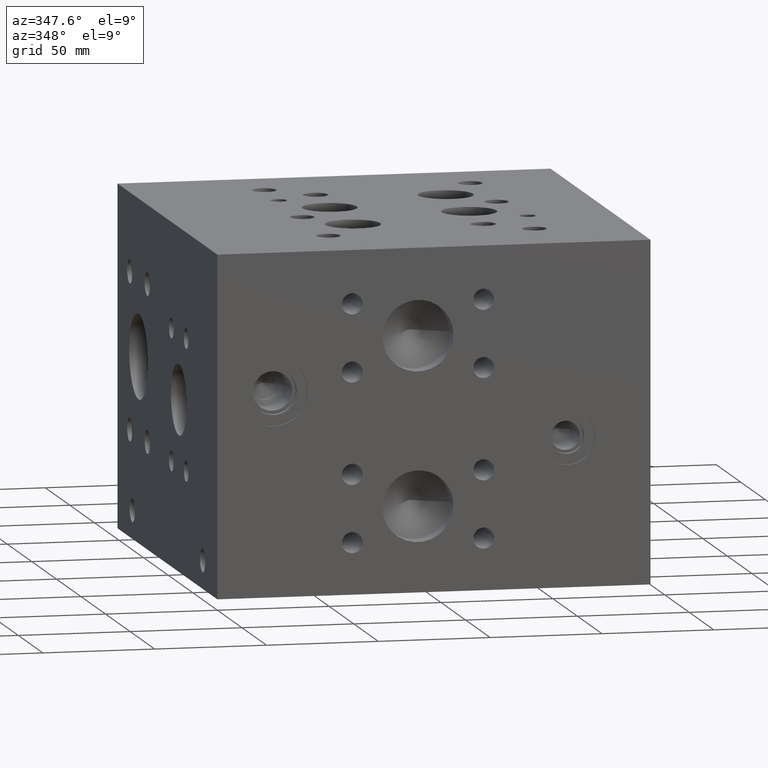
[diagram: clean part render]
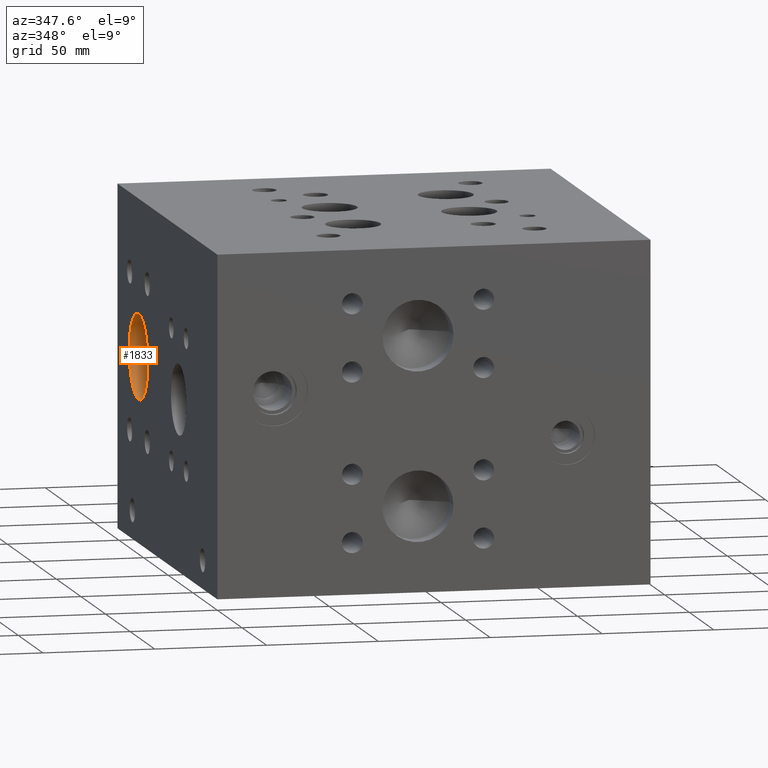
[diagram: same view with one face highlighted and labeled with its STEP entity id]
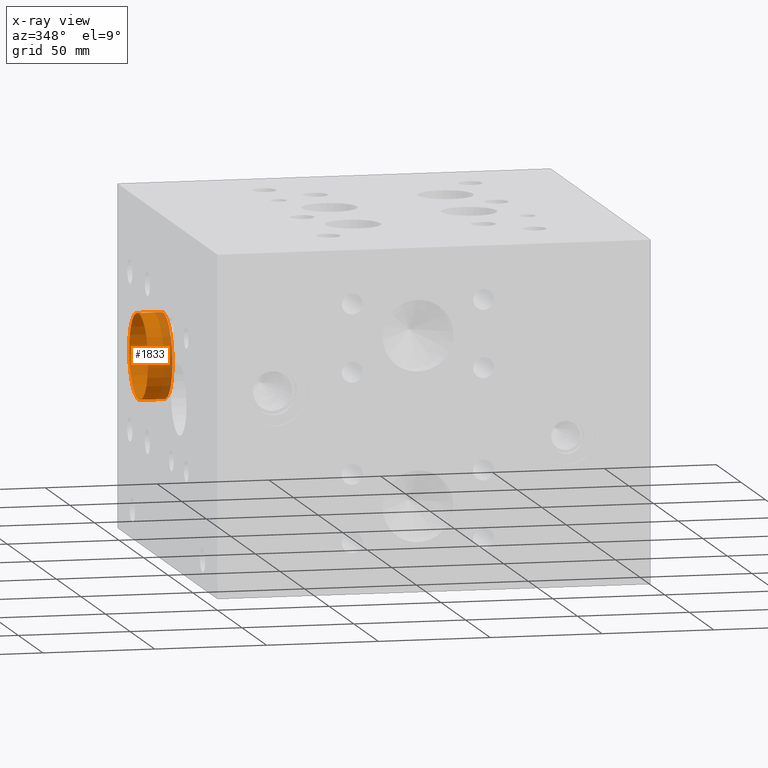
[diagram: x-ray of the same camera — body ghosted, the highlighted face saturated]
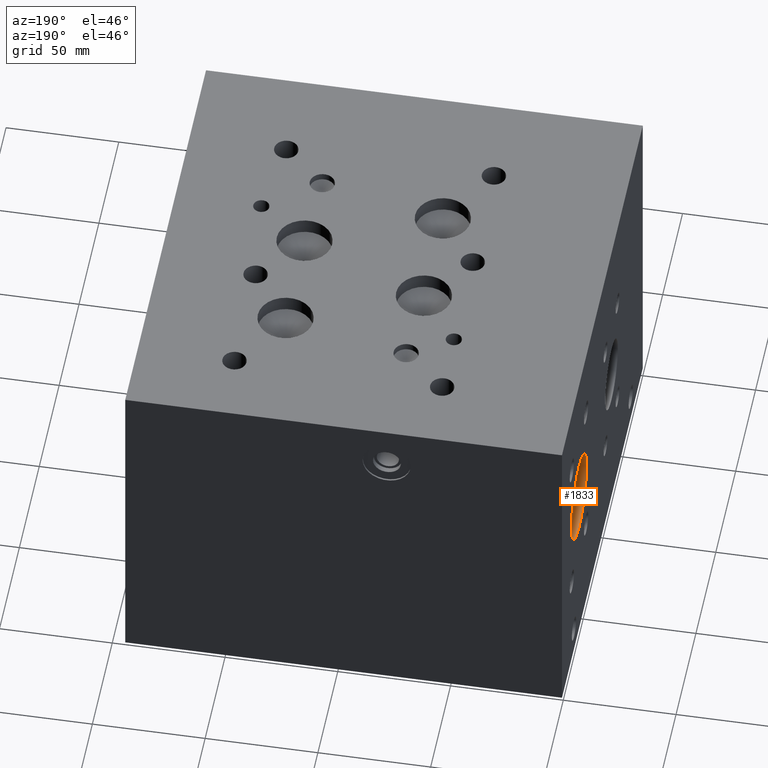
[diagram: same view with one face highlighted and labeled with its STEP entity id]
A machine part, auxiliary view. The second image highlights one B-rep face of the part: STEP entity #1833.
The next image is the same camera in x-ray: the body ghosted, the highlighted face saturated — about 22% of this face is hidden behind the body in this view.
A second angle (auxiliary view) of the same face is appended — the face is thin or edge-on in the first view.
In plain terms, the highlighted cylindrical surface (bore or boss wall) has radius 19.05 mm, axis along (-1, 0, 0).
Its self-contained STEP definition (entity closure, byte-faithful):
#1802=CARTESIAN_POINT('',(10.998522600000001,160.350200000000000,101.599999999999990));
#1803=VERTEX_POINT('',#1802);
#1804=CARTESIAN_POINT('',(10.998522600000001,160.350200000000000,82.550000000000011));
#1805=DIRECTION('',(-1.0,0.0,0.0));
#1806=DIRECTION('',(0.0,0.0,1.0));
#1807=AXIS2_PLACEMENT_3D('',#1804,#1805,#1806);
#1808=CIRCLE('',#1807,19.049999999999994);
#1809=EDGE_CURVE('',#1803,#1803,#1808,.T.);
#1814=CARTESIAN_POINT('',(5.499261300000001,160.350200000000000,82.550000000000011));
#1815=DIRECTION('',(-1.0,0.0,0.0));
#1816=DIRECTION('',(0.0,0.0,1.0));
#1817=AXIS2_PLACEMENT_3D('',#1814,#1815,#1816);
#1818=CYLINDRICAL_SURFACE('',#1817,19.049999999999994);
#1819=CARTESIAN_POINT('',(0.0,160.350200000000000,101.599999999999990));
#1820=VERTEX_POINT('',#1819);
#1821=CARTESIAN_POINT('',(0.0,160.350200000000000,82.550000000000011));
#1822=DIRECTION('',(1.0,0.0,0.0));
#1823=DIRECTION('',(0.0,0.0,1.0));
#1824=AXIS2_PLACEMENT_3D('',#1821,#1822,#1823);
#1825=CIRCLE('',#1824,19.049999999999994);
#1826=EDGE_CURVE('',#1820,#1820,#1825,.T.);
#1827=ORIENTED_EDGE('',*,*,#1826,.F.);
#1828=EDGE_LOOP('',(#1827));
#1829=FACE_OUTER_BOUND('',#1828,.T.);
#1830=ORIENTED_EDGE('',*,*,#1809,.F.);
#1831=EDGE_LOOP('',(#1830));
#1832=FACE_BOUND('',#1831,.T.);
#1833=ADVANCED_FACE('',(#1829,#1832),#1818,.F.);